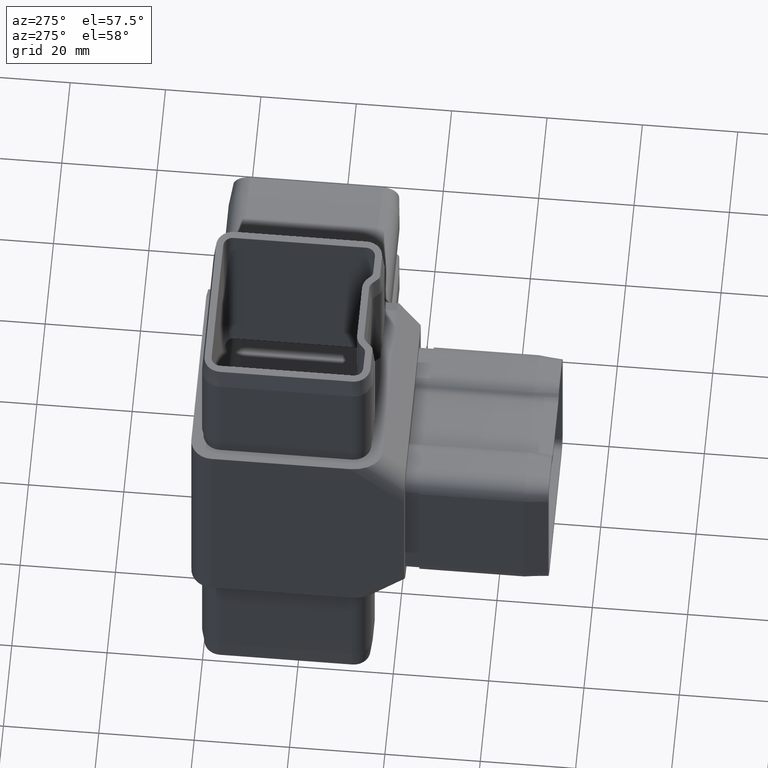
[diagram: clean part render]
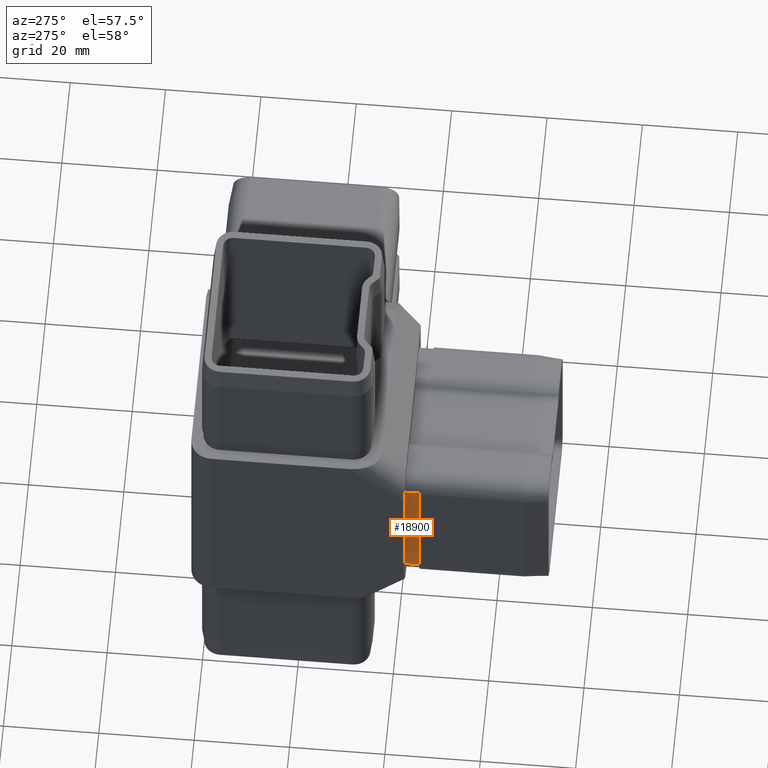
[diagram: same view with one face highlighted and labeled with its STEP entity id]
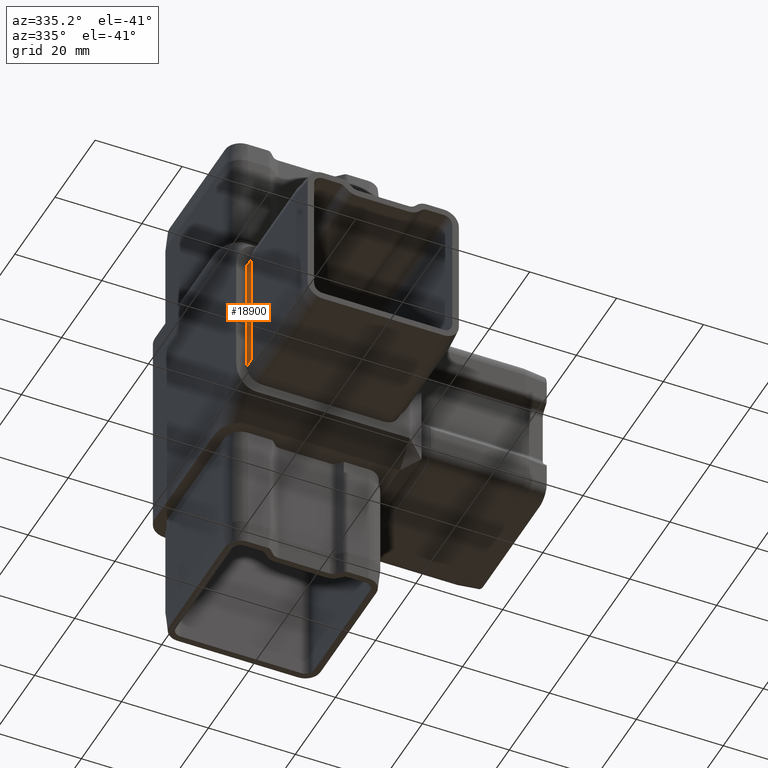
[diagram: same view with one face highlighted and labeled with its STEP entity id]
A machine part, auxiliary view. The second image highlights one B-rep face of the part: STEP entity #18900.
A second angle (auxiliary view) of the same face is appended — the face is thin or edge-on in the first view.
In plain terms, the highlighted planar face has unit normal (-1, 0, 0).
Its self-contained STEP definition (entity closure, byte-faithful):
#84 = LINE ( 'NONE', #15584, #11978 ) ;
#921 = DIRECTION ( 'NONE',  ( 1.248002500702740000E-016, 0.0000000000000000000, 1.000000000000000000 ) ) ;
#1409 = VERTEX_POINT ( 'NONE', #17812 ) ;
#1508 = LINE ( 'NONE', #5465, #18225 ) ;
#1884 = CARTESIAN_POINT ( 'NONE',  ( -20.10000000000000900, -25.50000000000000400, -13.89999999999998300 ) ) ;
#2579 = EDGE_CURVE ( 'NONE', #16126, #18140, #20317, .T. ) ;
#2582 = VERTEX_POINT ( 'NONE', #6335 ) ;
#4669 = CARTESIAN_POINT ( 'NONE',  ( -20.10000000000000900, -25.50000000000000400, -13.89999999999998300 ) ) ;
#4823 = EDGE_CURVE ( 'NONE', #2582, #18140, #1508, .T. ) ;
#5111 = EDGE_CURVE ( 'NONE', #1409, #16126, #19503, .T. ) ;
#5465 = CARTESIAN_POINT ( 'NONE',  ( -20.10000000000000500, -25.50000000000000400, 13.89999999999999500 ) ) ;
#5960 = ORIENTED_EDGE ( 'NONE', *, *, #20179, .F. ) ;
#6041 = VECTOR ( 'NONE', #19441, 1000.000000000000000 ) ;
#6335 = CARTESIAN_POINT ( 'NONE',  ( -20.10000000000000500, -22.50000000000000000, 13.89999999999999500 ) ) ;
#8117 = ORIENTED_EDGE ( 'NONE', *, *, #4823, .F. ) ;
#9231 = PLANE ( 'NONE',  #16306 ) ;
#9310 = DIRECTION ( 'NONE',  ( -1.000000000000000000, 1.156482317317870500E-015, 1.248002500702740000E-016 ) ) ;
#9394 = CARTESIAN_POINT ( 'NONE',  ( -20.10000000000000900, -25.50000000000000400, -13.89999999999998300 ) ) ;
#9638 = FACE_OUTER_BOUND ( 'NONE', #17976, .T. ) ;
#9660 = DIRECTION ( 'NONE',  ( 1.248002500702740000E-016, 0.0000000000000000000, 1.000000000000000000 ) ) ;
#10705 = DIRECTION ( 'NONE',  ( -1.156482317317870500E-015, -1.000000000000000000, 0.0000000000000000000 ) ) ;
#11778 = ORIENTED_EDGE ( 'NONE', *, *, #2579, .T. ) ;
#11978 = VECTOR ( 'NONE', #921, 1000.000000000000000 ) ;
#12265 = ORIENTED_EDGE ( 'NONE', *, *, #5111, .T. ) ;
#14669 = CARTESIAN_POINT ( 'NONE',  ( -20.10000000000000900, -25.50000000000000400, -13.89999999999998300 ) ) ;
#15584 = CARTESIAN_POINT ( 'NONE',  ( -20.10000000000000900, -22.50000000000000000, -13.89999999999998300 ) ) ;
#16126 = VERTEX_POINT ( 'NONE', #1884 ) ;
#16306 = AXIS2_PLACEMENT_3D ( 'NONE', #9394, #9310, #10705 ) ;
#17060 = CARTESIAN_POINT ( 'NONE',  ( -20.10000000000000500, -25.50000000000000400, 13.89999999999999500 ) ) ;
#17788 = VECTOR ( 'NONE', #9660, 1000.000000000000000 ) ;
#17812 = CARTESIAN_POINT ( 'NONE',  ( -20.10000000000000900, -22.50000000000000000, -13.89999999999998300 ) ) ;
#17976 = EDGE_LOOP ( 'NONE', ( #12265, #11778, #8117, #5960 ) ) ;
#18140 = VERTEX_POINT ( 'NONE', #17060 ) ;
#18225 = VECTOR ( 'NONE', #18469, 1000.000000000000000 ) ;
#18469 = DIRECTION ( 'NONE',  ( -1.156482317317870300E-015, -1.000000000000000000, -2.125139392421741900E-030 ) ) ;
#18900 = ADVANCED_FACE ( 'NONE', ( #9638 ), #9231, .T. ) ;
#19441 = DIRECTION ( 'NONE',  ( -1.156482317317870300E-015, -1.000000000000000000, -2.125139392421741900E-030 ) ) ;
#19503 = LINE ( 'NONE', #14669, #6041 ) ;
#20179 = EDGE_CURVE ( 'NONE', #1409, #2582, #84, .T. ) ;
#20317 = LINE ( 'NONE', #4669, #17788 ) ;